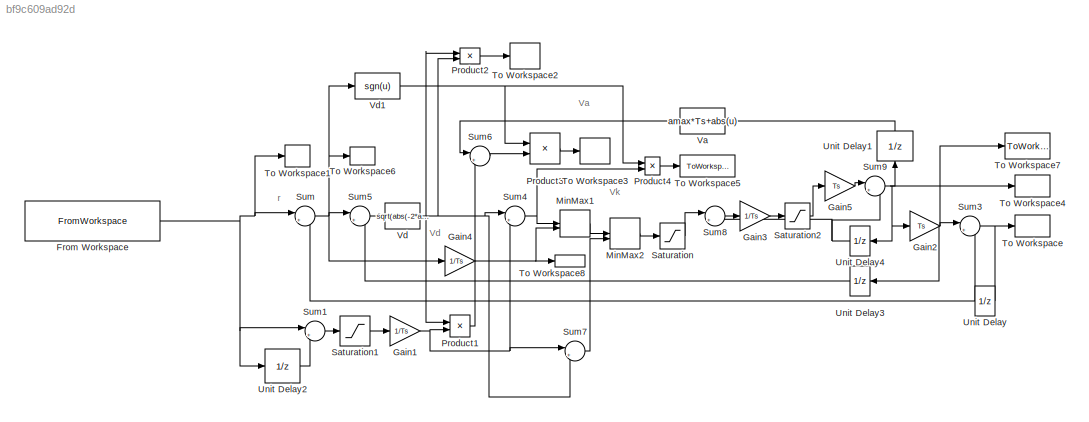
MODEL slx_bf9c609ad92d
KIND model
CONFIG AbsTol = auto
CONFIG EnableMultiTasking = off
CONFIG FixedStep = Ts
CONFIG MaxStep = auto
CONFIG MinStep = auto
CONFIG RelTol = 1e-3
CONFIG SampleTimeConstraint = Unconstrained
CONFIG SolverName = FixedStepDiscrete
CONFIG StartTime = 0.0
CONFIG StopTime = Tf
WORKSPACE source: mxarray member
WORKSPACE Ts = 0.002
WORKSPACE acoeff = 0.95
WORKSPACE amax = 0.1
WORKSPACE jcoeff = 0.1
WORKSPACE jmax = 1
WORKSPACE pf = 160
WORKSPACE reference_command = [0 0.002 0.004 0.006 0.008 0.01 0.012 0.014 0.016 0.018 0.02 0.022 ... (200002 elements, 100001x2)]
WORKSPACE v = 50
WORKSPACE vmax = 1.5
BLOCK [FromWorkspace] From Workspace
  VariableName = reference_command
BLOCK [Gain] Gain1
  Gain = 1/Ts
BLOCK [Gain] Gain2
  Gain = Ts
BLOCK [Gain] Gain3
  Gain = 1/Ts
BLOCK [Gain] Gain4
  Gain = 1/Ts
BLOCK [Gain] Gain5
  Gain = Ts
BLOCK [MinMax] MinMax1
  Inputs = 2
BLOCK [MinMax] MinMax2
  Function = max
  Inputs = 2
BLOCK [Product] Product1
BLOCK [Product] Product2
BLOCK [Product] Product3
BLOCK [Product] Product4
BLOCK [Saturate] Saturation
  LowerLimit = -vmax
  UpperLimit = vmax
BLOCK [Saturate] Saturation1
  LowerLimit = -vmax*Ts
  UpperLimit = vmax*Ts
BLOCK [Saturate] Saturation2
  LowerLimit = -amax
  UpperLimit = amax
BLOCK [Sum] Sum
  Inputs = |+-
BLOCK [Sum] Sum1
  Inputs = |+-
BLOCK [Sum] Sum3
  Inputs = |++
BLOCK [Sum] Sum4
  Inputs = |++
BLOCK [Sum] Sum5
  Inputs = |+-
BLOCK [Sum] Sum6
  Inputs = |+-
BLOCK [Sum] Sum7
  Inputs = |+-
BLOCK [Sum] Sum8
  Inputs = |+-
BLOCK [Sum] Sum9
  Inputs = |++
BLOCK [ToWorkspace] To Workspace
  FixptAsFi = on
  MaxDataPoints = inf
  SampleTime = -1
  VariableName = pos
BLOCK [ToWorkspace] To Workspace1
  FixptAsFi = on
  MaxDataPoints = inf
  SampleTime = -1
  VariableName = p
BLOCK [ToWorkspace] To Workspace2
  FixptAsFi = on
  MaxDataPoints = inf
  SampleTime = -1
  VariableName = Vd
BLOCK [ToWorkspace] To Workspace3
  FixptAsFi = on
  MaxDataPoints = inf
  SampleTime = -1
  VariableName = Va
BLOCK [ToWorkspace] To Workspace4
  FixptAsFi = on
  MaxDataPoints = inf
  SampleTime = -1
  VariableName = vel
BLOCK [ToWorkspace] To Workspace5
  FixptAsFi = on
  MaxDataPoints = inf
  SampleTime = -1
  VariableName = deltaP_ads
BLOCK [ToWorkspace] To Workspace6
  FixptAsFi = on
  MaxDataPoints = inf
  SampleTime = -1
  VariableName = e
BLOCK [ToWorkspace] To Workspace7
  FixptAsFi = on
  MaxDataPoints = inf
  SampleTime = -1
  VariableName = deltaP
BLOCK [ToWorkspace] To Workspace8
  FixptAsFi = on
  MaxDataPoints = inf
  SampleTime = -1
  VariableName = V
BLOCK [UnitDelay] Unit Delay
  HasFrameUpgradeWarning = on
  SampleTime = -1
BLOCK [UnitDelay] Unit Delay1
  HasFrameUpgradeWarning = on
  NameLocation = right
  SampleTime = -1
BLOCK [UnitDelay] Unit Delay2
  HasFrameUpgradeWarning = on
  SampleTime = -1
BLOCK [UnitDelay] Unit Delay3
  HasFrameUpgradeWarning = on
  SampleTime = -1
BLOCK [UnitDelay] Unit Delay4
  HasFrameUpgradeWarning = on
  SampleTime = -1
BLOCK [Fcn] Va
  Expr = amax*Ts+abs(u)
BLOCK [Fcn] Vd
  Expr = sqrt(abs(-2*amax*u))
BLOCK [Fcn] Vd1
  Expr = sgn(u)
ANNOTATION (root): Va
ANNOTATION (root): Vd
ANNOTATION (root): Vk
ANNOTATION (root): r
NET From Workspace:1 -> Sum1:1, Sum:1, To Workspace1:1, Unit Delay2:1
NET Gain1:1 -> Product1:2, Sum4:2, Sum7:1
NET Gain2:1 -> Sum3:1, To Workspace7:1, Unit Delay3:1
LINE Gain3:1 -> Saturation2:1
NET Gain4:1 -> MinMax1:2, To Workspace8:1
LINE Gain5:1 -> Sum9:1
LINE MinMax1:1 -> MinMax2:1
LINE MinMax2:1 -> Saturation:1
LINE Product1:1 -> Sum6:2
LINE Product2:1 -> To Workspace2:1
LINE Product3:1 -> To Workspace3:1
LINE Product4:1 -> To Workspace5:1
LINE Saturation1:1 -> Gain1:1
LINE Saturation2:1 -> Gain5:1
LINE Saturation:1 -> Sum8:1
LINE Sum1:1 -> Saturation1:1
NET Sum3:1 -> To Workspace:1, Unit Delay:1
NET Sum4:1 -> MinMax1:1, Product4:2
LINE Sum5:1 -> Vd:1
LINE Sum6:1 -> Product3:2
LINE Sum7:1 -> MinMax2:2
LINE Sum8:1 -> Gain3:1
NET Sum9:1 -> Gain2:1, To Workspace4:1, Unit Delay1:1, Unit Delay4:1
NET Sum:1 -> Gain4:1, Sum5:1, To Workspace6:1, Vd1:1
LINE Unit Delay1:1 -> Va:1
LINE Unit Delay2:1 -> Sum1:2
LINE Unit Delay3:1 -> Sum5:2
NET Unit Delay4:1 -> Sum8:2, Sum9:2
NET Unit Delay:1 -> Sum3:2, Sum:2
LINE Va:1 -> Sum6:1
NET Vd1:1 -> Product1:1, Product2:1, Product3:1, Product4:1
NET Vd:1 -> Product2:2, Sum4:1, Sum7:2
note: NET lines group one-source signal fan-out (src -> all destinations, sorted); 1:1 wires keep LINE
